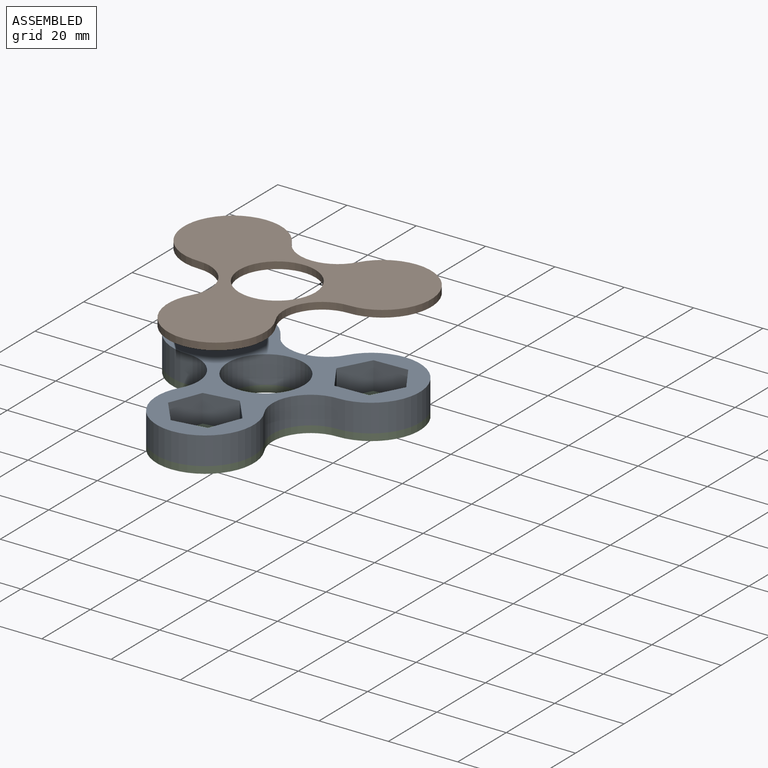
[diagram: assembled view]
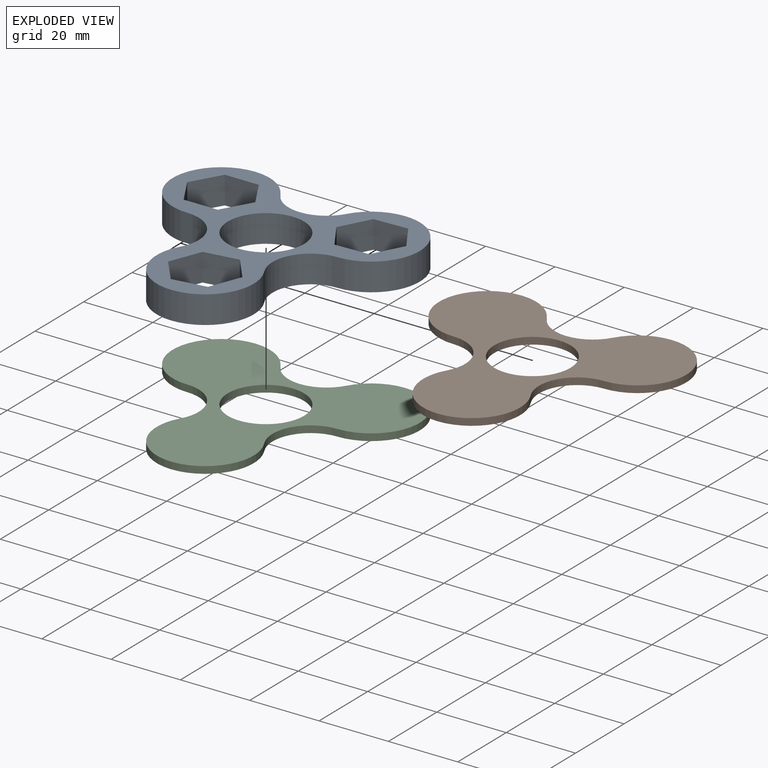
[diagram: exploded view]
GUIDED TOUR — MATED ASSEMBLY (Onshape document b34f83c8f009793a51610ea7, AutoMate assembly b34f83c8f009793a51610ea7_a12ae2896f6c75beb0e51673_f94b9968796a2f47f23c5f82_default)

This assembly has 3 components, labeled P0..P2 below (a component is one placed occurrence of a part; the same part can appear more than once), held together by 1 mate. A mate is a constraint between two components; its type names the relative motion it leaves free:
  REVOLUTE — leaves rotation about the listed axis free (a hinge).
Axis/direction vectors are unit vectors and 'through' points are millimeter coordinates, both in the assembly's world frame.

MATES
  1. REVOLUTE "Revolute 1": P0 <-> P2, axis (0.000, 0.000, -1.000) through (-0.63, -18.18, 28.04) mm

ASSEMBLY ORDER
  1. P2 — the base component [order verified]
  2. P0 [order verified]
  3. P1 [order verified]
Order-tag legend:
  [order verified] — this step's position reverses a verified removal order: the component was checked to insert without passing through the ones already placed.

Of the 3 components, 3 carry the full construction recipe — the FeatureScript program that regenerates the part's solid from scratch; the rest are supplied as boundary geometry only.
Each toured component is shown spotlighted twice — in the assembled view, then in the exploded view, where a leader line traces a displaced component back to its assembled socket (saturated green if recipe-attached, orange if geometry-only; every other component desaturated gray) — followed by its recipe or geometry summary and the mates that hold it.
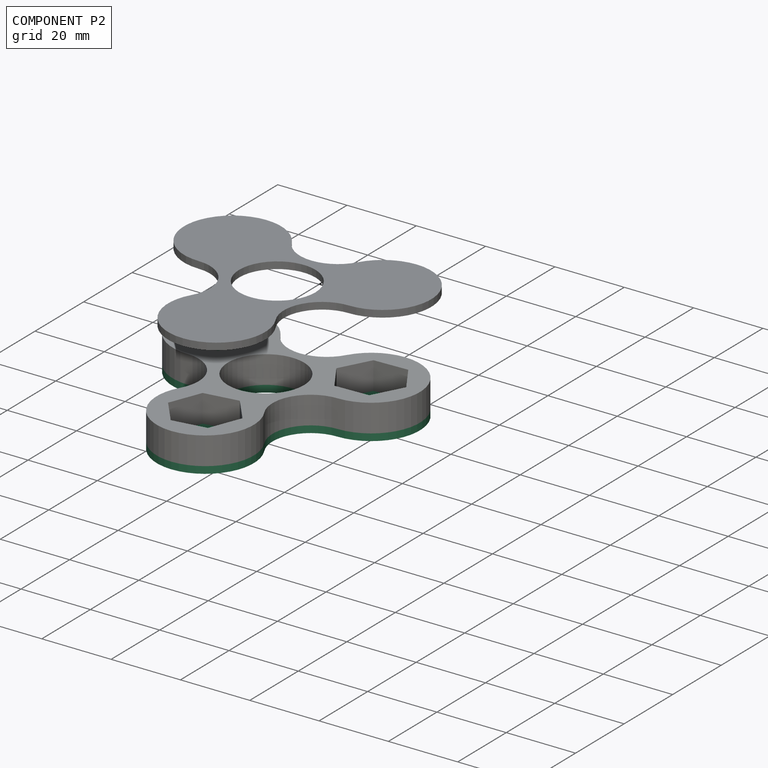
[diagram: component P2 — assembled]
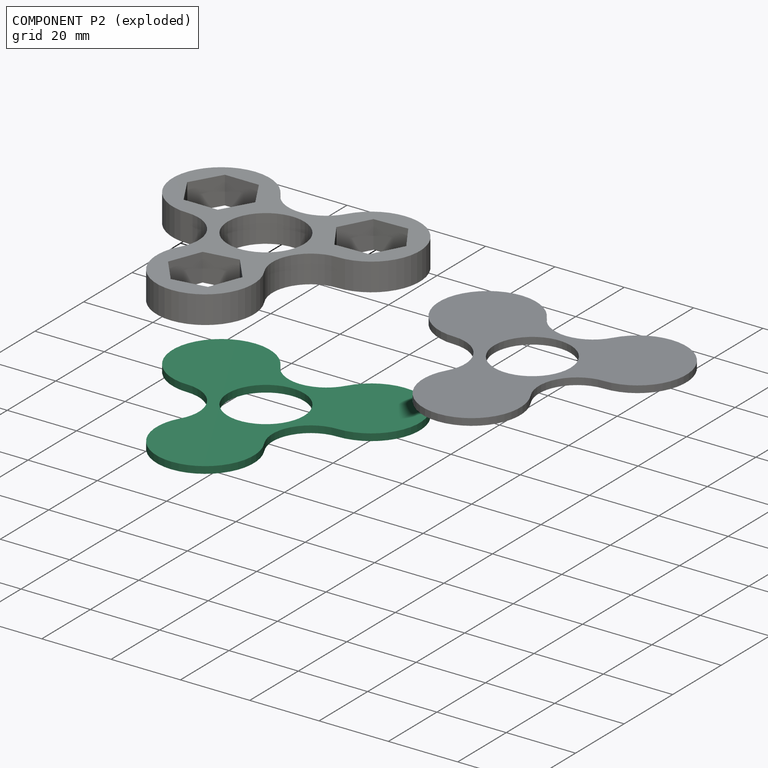
[diagram: component P2 — exploded]
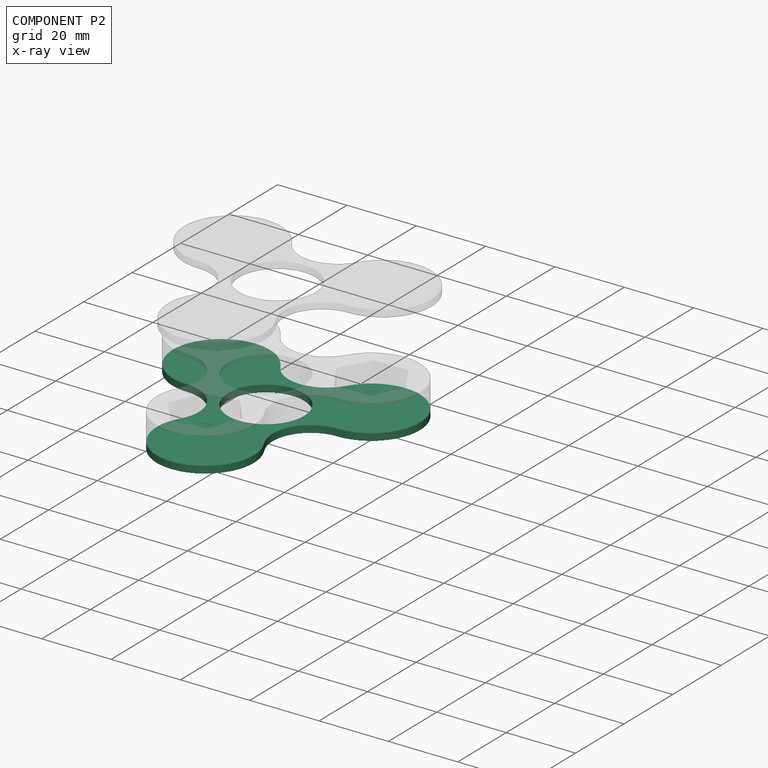
[diagram: component P2 — x-ray view]
COMPONENT P2 — same part as P1 (CADFS 00526130); its construction recipe is shown at P1.
Held by: REVOLUTE mate "Revolute 1" to P0.
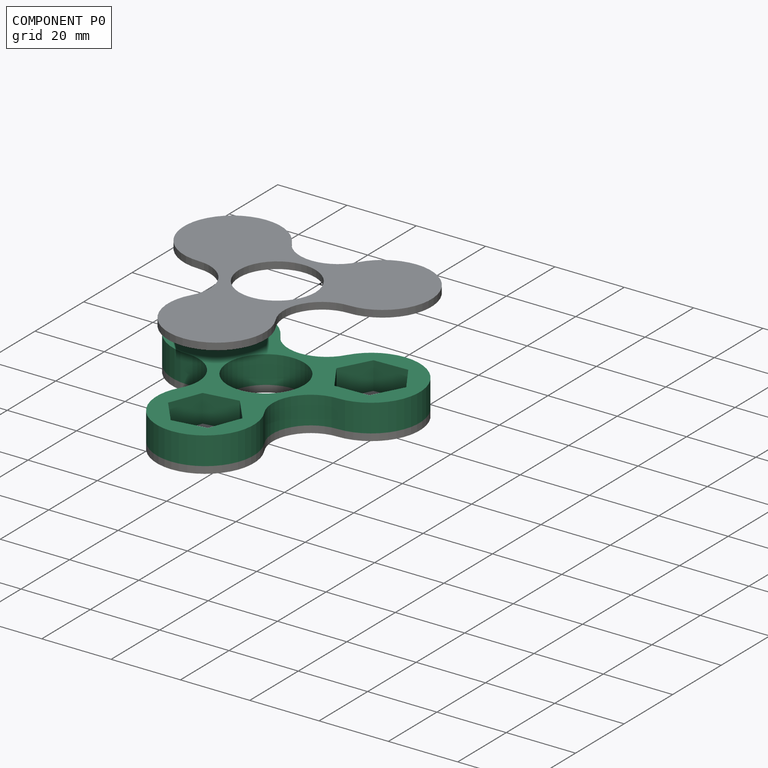
[diagram: component P0 — assembled]
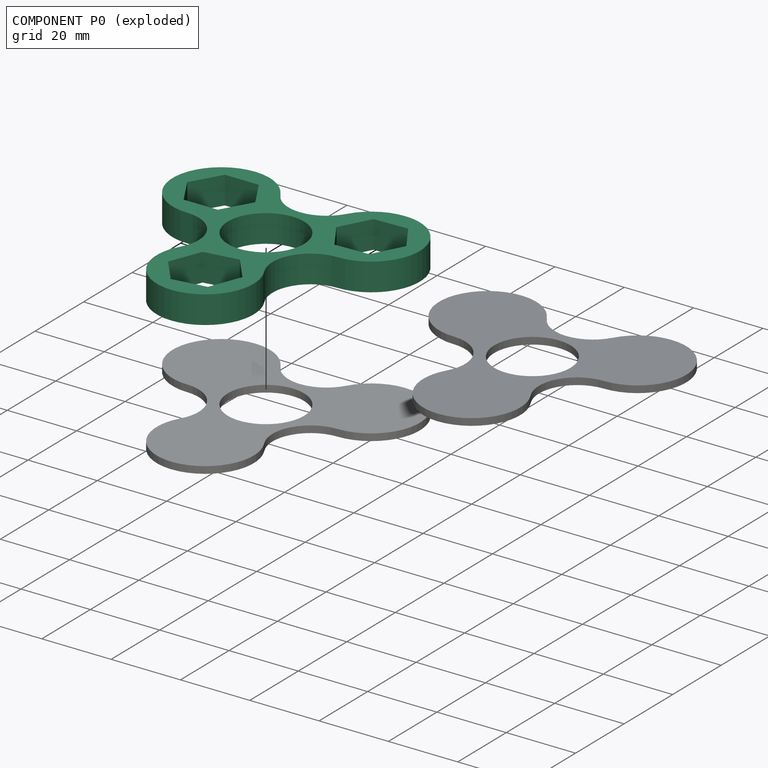
[diagram: component P0 — exploded]
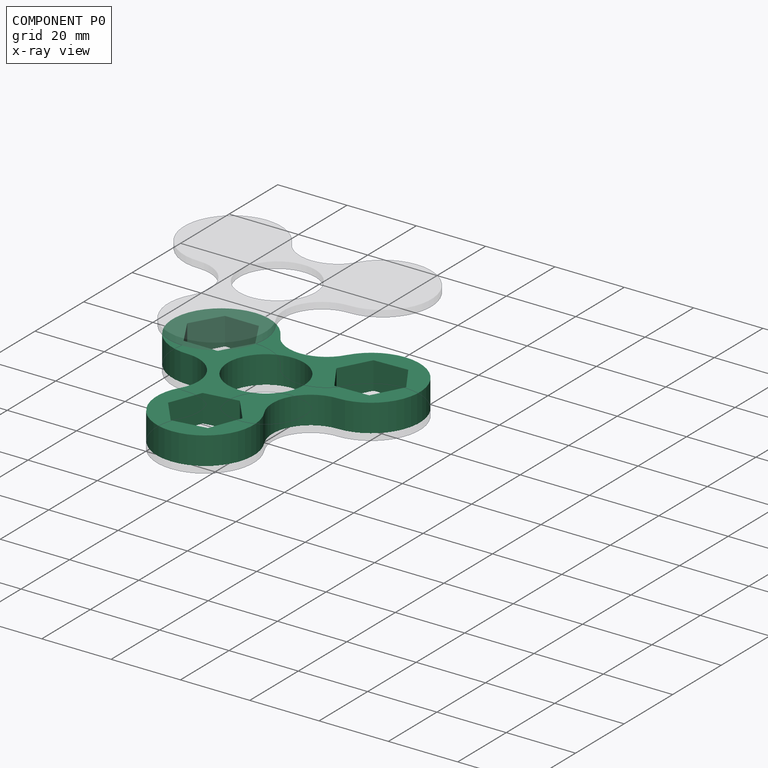
[diagram: component P0 — x-ray view]
COMPONENT P0 — recipe-attached (CADFS 00526129, mesh-verified: the recipe's output STEP matches this component's geometry to below the mesh-comparison resolution (tessellation chordal tolerance ~0.146 mm)).
Held by: REVOLUTE mate "Revolute 1" to P2.
Construction recipe (FeatureScript — the CAD program that rebuilds this solid; sketch coordinates are in the units given by the * unit suffixes, e.g. mm):

FeatureScript 1511;
import(path : "onshape/std/geometry.fs", version : "1511.0");
import(path : "onshape/std/common.fs", version : "1511.0");
const mm = millimeter;
const VERTEX = EntityType.VERTEX;
const EDGE = EntityType.EDGE;
const FACE = EntityType.FACE;
const BODY = EntityType.BODY;
function v(x, y){return vector(x, y);}
function OD(order){return orderDisambiguation(order);}
function OSD(set){return originalSetDisambiguation(set);}
function TD(topology){return topologyDisambiguation(topology);}
function TDD(query){return trueDependencyDisambiguation(query);}
function sQuery(a, b, c) {return sketchEntityQuery(a, b, c);}

annotation { "Feature Type Name" : "Feature", "Feature Type Description" : "" }
export const myFeature = defineFeature(function(context is Context, id is Id, definition is map)
    precondition{}
    {
        {
            var Q0;
            Q0=qCreatedBy(makeId("Top.planeOp"),FACE);
            var sketch = newSketch(context, id + "F0", { "sketchPlane" : qUnion([Q0])});
            skArc(sketch, "E0", {"start": v(-9.53, 19.5) * mm, "mid": v(0, 14) * mm, "end": v(9.53, 19.5) * mm});
            skArc(sketch, "E1.2.0", {"start": v(-12.12, -18) * mm, "mid": v(-12.12, -7) * mm, "end": v(-21.65, -1.5) * mm});
            skArc(sketch, "E1.4.0", {"start": v(21.65, -1.5) * mm, "mid": v(12.12, -7) * mm, "end": v(12.12, -18) * mm});
            skPoint(sketch, "E1.center", {"position": v(0, 0) * mm});
            skArc(sketch, "E2.1.0", {"start": v(-9.53, 19.5) * mm, "mid": v(-33.77, 19.5) * mm, "end": v(-21.65, -1.5) * mm});
            skArc(sketch, "E2.3.0", {"start": v(-12.12, -18) * mm, "mid": v(0, -39) * mm, "end": v(12.12, -18) * mm});
            skArc(sketch, "E2.5.0", {"start": v(21.65, -1.5) * mm, "mid": v(33.77, 19.5) * mm, "end": v(9.53, 19.5) * mm});
            skCircle(sketch, "E3", {"center": v(0, 0) * mm, "radius": 11 * mm});
            skCircle(sketch, "E4.cCircle", {"center": v(21.65, 12.5) * mm, "radius": 9.81 * mm, "construction": true});
            skLineSegment(sketch, "E4.0", {"start": v(26.24, 21.17) * mm, "end": v(31.46, 12.86) * mm});
            skLineSegment(sketch, "E4.1", {"start": v(31.46, 12.86) * mm, "end": v(26.87, 4.19) * mm});
            skLineSegment(sketch, "E4.2", {"start": v(26.87, 4.19) * mm, "end": v(17.06, 3.83) * mm});
            skLineSegment(sketch, "E4.3", {"start": v(17.06, 3.83) * mm, "end": v(11.84, 12.14) * mm});
            skLineSegment(sketch, "E4.4", {"start": v(11.84, 12.14) * mm, "end": v(16.44, 20.81) * mm});
            skLineSegment(sketch, "E4.5", {"start": v(16.44, 20.81) * mm, "end": v(26.24, 21.17) * mm});
            skCircle(sketch, "E5.cCircle", {"center": v(0, -25) * mm, "radius": 9.81 * mm, "construction": true});
            skLineSegment(sketch, "E5.0", {"start": v(9.7, -23.52) * mm, "end": v(6.13, -32.66) * mm});
            skLineSegment(sketch, "E5.1", {"start": v(6.13, -32.66) * mm, "end": v(-3.57, -34.14) * mm});
            skLineSegment(sketch, "E5.2", {"start": v(-3.57, -34.14) * mm, "end": v(-9.7, -26.48) * mm});
            skLineSegment(sketch, "E5.3", {"start": v(-9.7, -26.48) * mm, "end": v(-6.13, -17.34) * mm});
            skLineSegment(sketch, "E5.4", {"start": v(-6.13, -17.34) * mm, "end": v(3.57, -15.86) * mm});
            skLineSegment(sketch, "E5.5", {"start": v(3.57, -15.86) * mm, "end": v(9.7, -23.52) * mm});
            skCircle(sketch, "E6.cCircle", {"center": v(-21.65, 12.5) * mm, "radius": 9.81 * mm, "construction": true});
            skLineSegment(sketch, "E6.0", {"start": v(-11.84, 12.5) * mm, "end": v(-16.74, 4) * mm});
            skLineSegment(sketch, "E6.1", {"start": v(-16.74, 4) * mm, "end": v(-26.56, 4) * mm});
            skLineSegment(sketch, "E6.2", {"start": v(-26.56, 4) * mm, "end": v(-31.47, 12.5) * mm});
            skLineSegment(sketch, "E6.3", {"start": v(-31.47, 12.5) * mm, "end": v(-26.56, 21) * mm});
            skLineSegment(sketch, "E6.4", {"start": v(-26.56, 21) * mm, "end": v(-16.74, 21) * mm});
            skLineSegment(sketch, "E6.5", {"start": v(-16.74, 21) * mm, "end": v(-11.84, 12.5) * mm});
            skSolve(sketch);
        }
        {
            var Q0;
            Q0 = qSketchRegion(id + "F0", true);
            extrude(context, id + "F1", {"entities" : qUnion([Q0]), "depth" : 8 * mm, "offsetDistance" : 25 * mm});
        }
    });
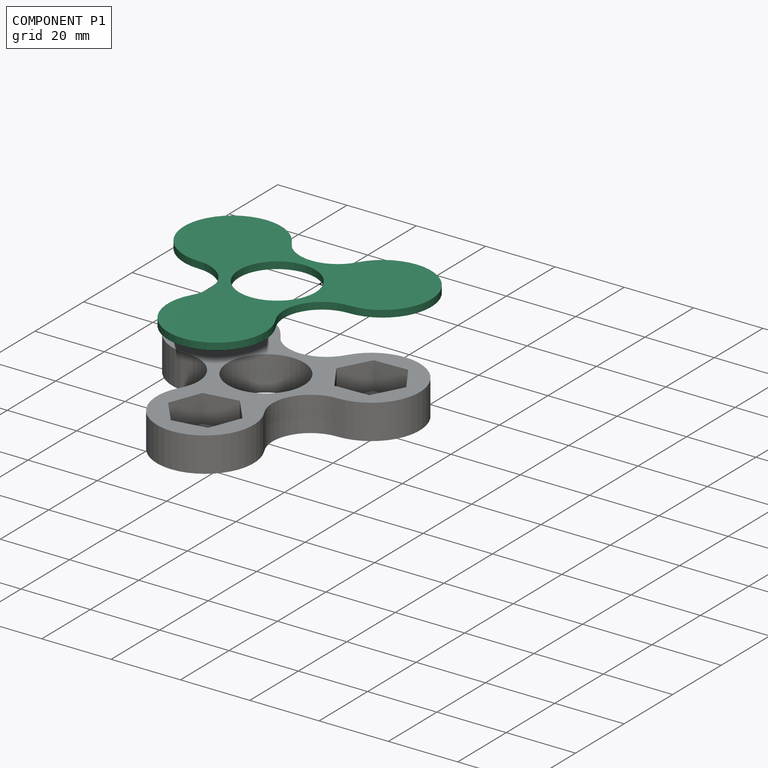
[diagram: component P1 — assembled]
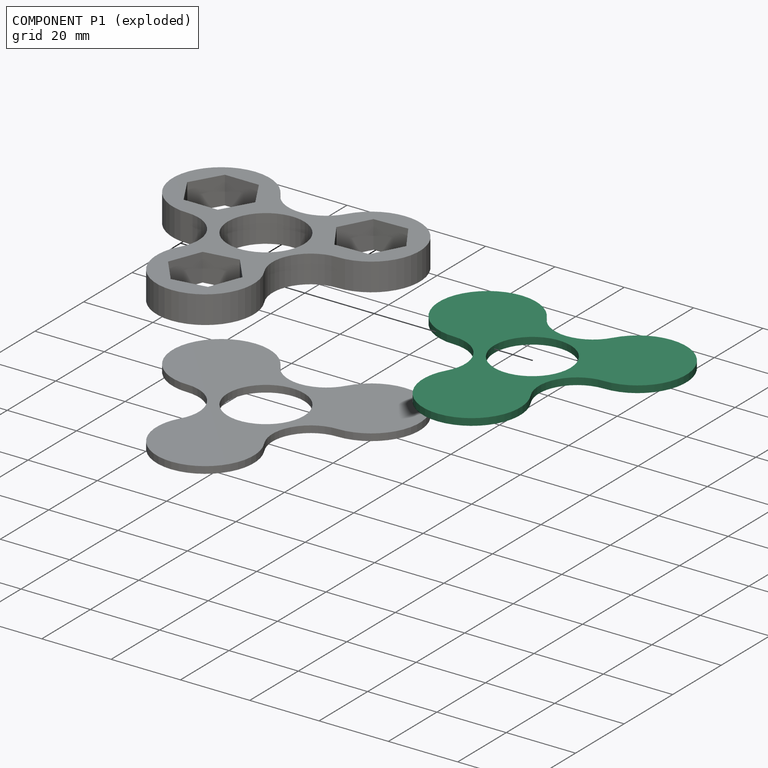
[diagram: component P1 — exploded]
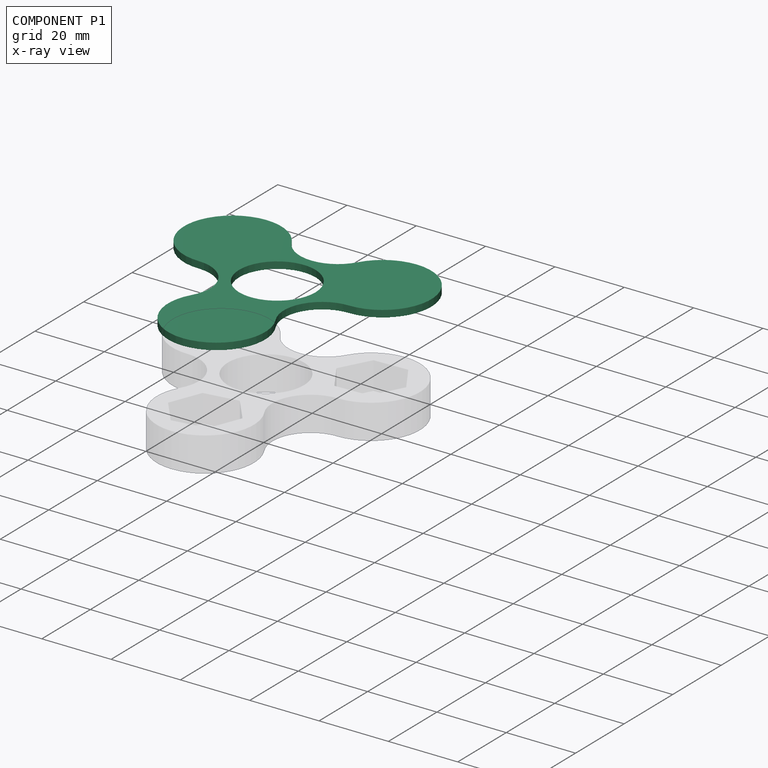
[diagram: component P1 — x-ray view]
COMPONENT P1 — recipe-attached (CADFS 00526130, mesh-verified: the recipe's output STEP matches this component's geometry to below the mesh-comparison resolution (tessellation chordal tolerance ~0.145 mm)).
Held by: no mates (free).
Construction recipe (FeatureScript — the CAD program that rebuilds this solid; sketch coordinates are in the units given by the * unit suffixes, e.g. mm):

FeatureScript 1511;
import(path : "onshape/std/geometry.fs", version : "1511.0");
import(path : "onshape/std/common.fs", version : "1511.0");
const mm = millimeter;
const VERTEX = EntityType.VERTEX;
const EDGE = EntityType.EDGE;
const FACE = EntityType.FACE;
const BODY = EntityType.BODY;
function v(x, y){return vector(x, y);}
function OD(order){return orderDisambiguation(order);}
function OSD(set){return originalSetDisambiguation(set);}
function TD(topology){return topologyDisambiguation(topology);}
function TDD(query){return trueDependencyDisambiguation(query);}
function sQuery(a, b, c) {return sketchEntityQuery(a, b, c);}

annotation { "Feature Type Name" : "Feature", "Feature Type Description" : "" }
export const myFeature = defineFeature(function(context is Context, id is Id, definition is map)
    precondition{}
    {
        {
            var Q0;
            Q0=qCreatedBy(makeId("Top.planeOp"),FACE);
            var sketch = newSketch(context, id + "F0", { "sketchPlane" : qUnion([Q0])});
            skArc(sketch, "E0", {"start": v(-9.53, 19.5) * mm, "mid": v(0, 14) * mm, "end": v(9.53, 19.5) * mm});
            skArc(sketch, "E1.2.0", {"start": v(-12.12, -18) * mm, "mid": v(-12.12, -7) * mm, "end": v(-21.65, -1.5) * mm});
            skArc(sketch, "E1.4.0", {"start": v(21.65, -1.5) * mm, "mid": v(12.12, -7) * mm, "end": v(12.12, -18) * mm});
            skPoint(sketch, "E1.center", {"position": v(0, 0) * mm});
            skArc(sketch, "E2.1.0", {"start": v(-9.53, 19.5) * mm, "mid": v(-33.77, 19.5) * mm, "end": v(-21.65, -1.5) * mm});
            skArc(sketch, "E2.3.0", {"start": v(-12.12, -18) * mm, "mid": v(0, -39) * mm, "end": v(12.12, -18) * mm});
            skArc(sketch, "E2.5.0", {"start": v(21.65, -1.5) * mm, "mid": v(33.77, 19.5) * mm, "end": v(9.53, 19.5) * mm});
            skCircle(sketch, "E3", {"center": v(0, 0) * mm, "radius": 11 * mm});
            skSolve(sketch);
        }
        {
            var Q0;
            Q0 = qSketchRegion(id + "F0", true);
            extrude(context, id + "F1", {"entities" : qUnion([Q0]), "depth" : 2 * mm, "offsetDistance" : 25 * mm});
        }
    });
PROVENANCE & LICENSES
Assembly (occurrences, transforms, mates, per-part STEP geometry): AutoMate dataset, Zenodo record 7776208, CC0.
Construction recipes: CADFS (HuggingFace VladPyatov/CADFS, CC-BY-4.0, layered over the ABC dataset), FeatureScript reconstruction programs keyed by ABC model id.
Join: ABC meta listings map ABC model id -> Onshape documentId; within a shared document, parts are matched by geometric signature (bounding-box dims + volume at 0.1% relative tolerance, exact B-rep face/solid counts).
Verification: 3 of this assembly's 3 components carry a recipe attachment, and every attachment is mesh-verified: the CADFS STEP and the AutoMate member STEP were compared as meshes in their shared local frame (symmetric sampled-point-to-mesh distance); worst across the 3 attachments: below the mesh-comparison resolution (tessellation chordal tolerance ~0.146 mm) on a 97 mm part.
Renders: orthographic iso camera (az 35 / el 25); the floor grid conveys scale (grid pitch printed in each image; no ruler). In the exploded view each component is displaced by its stored offset vector: the offsets alone carry the explosion direction (mate normal/axis signs are not orientation cues and do not encode it), and separation distances are assigned per mate-chain, not proportionally to assembly-order depth.
